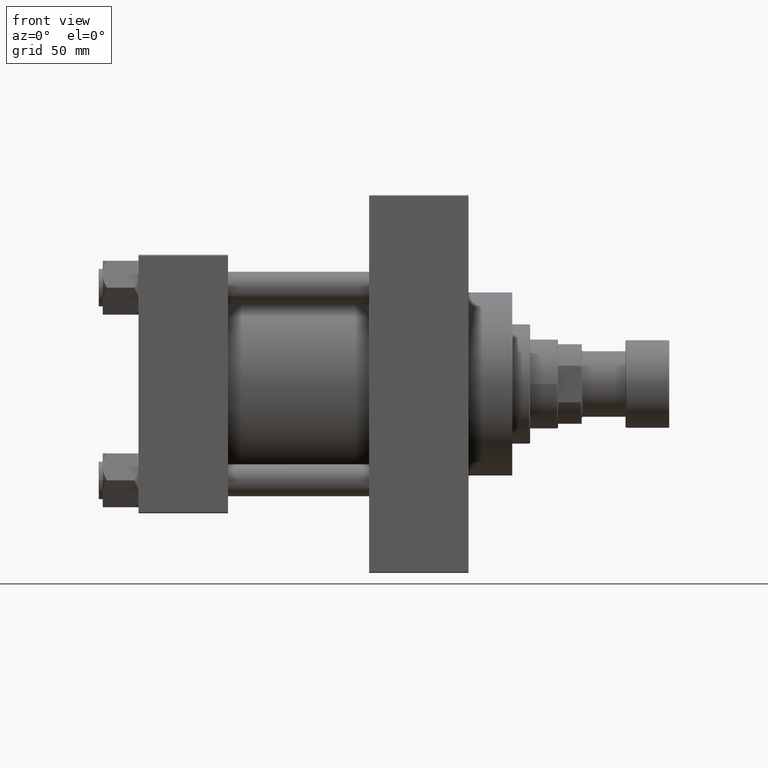
[diagram: clean part render]
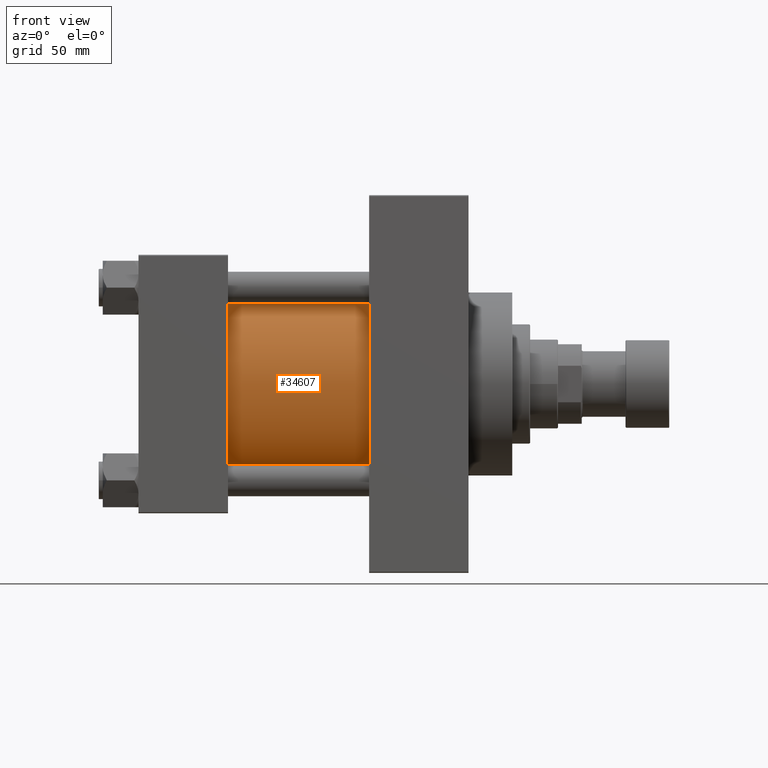
[diagram: same view with one face highlighted and labeled with its STEP entity id]
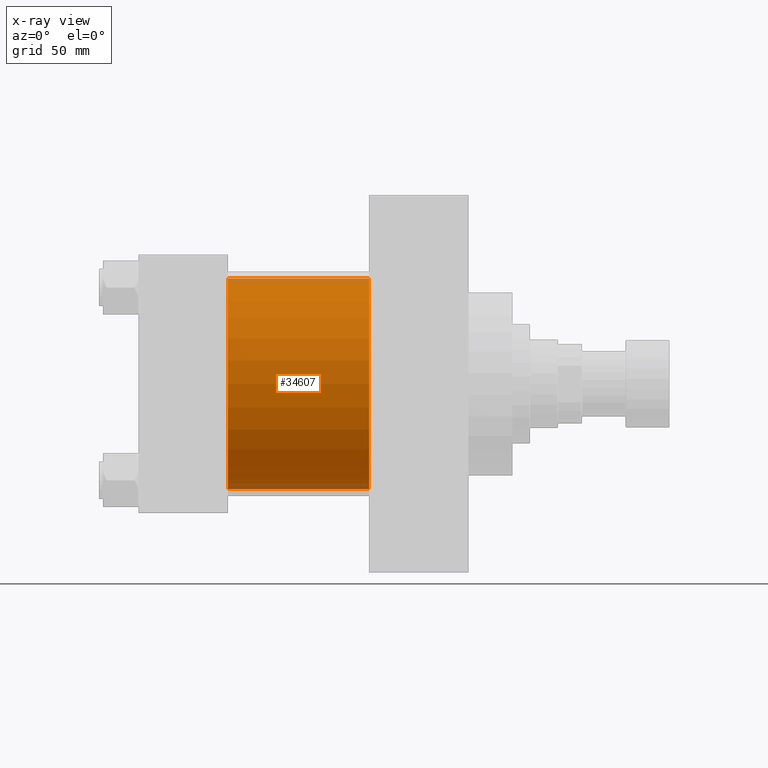
[diagram: x-ray of the same camera — body ghosted, the highlighted face saturated]
A machine part, front view. The second image highlights one B-rep face of the part: STEP entity #34607.
The next image is the same camera in x-ray: the body ghosted, the highlighted face saturated — about 5% of this face is hidden behind the body in this view.
In plain terms, the highlighted cylindrical surface (partial cylindrical patch) has radius 53 mm, axis along (-1, -0, -0).
Its self-contained STEP definition (entity closure, byte-faithful):
#646 = DIRECTION ( 'NONE',  ( 0.000000000000000000, 0.000000000000000000, 1.000000000000000000 ) ) ;
#880 = DIRECTION ( 'NONE',  ( 1.000000000000000000, -0.000000000000000000, 0.000000000000000000 ) ) ;
#972 = ORIENTED_EDGE ( 'NONE', *, *, #25551, .T. ) ;
#1797 = AXIS2_PLACEMENT_3D ( 'NONE', #34204, #880, #646 ) ;
#3324 = CYLINDRICAL_SURFACE ( 'NONE', #13674, 53.00000000000000711 ) ;
#3547 = AXIS2_PLACEMENT_3D ( 'NONE', #18473, #11649, #29896 ) ;
#3761 = ORIENTED_EDGE ( 'NONE', *, *, #34341, .F. ) ;
#4190 = EDGE_CURVE ( 'NONE', #30008, #10428, #4941, .T. ) ;
#4941 = LINE ( 'NONE', #16157, #22422 ) ;
#5246 = VERTEX_POINT ( 'NONE', #31275 ) ;
#5876 = CIRCLE ( 'NONE', #3547, 53.00000000000000711 ) ;
#6017 = CARTESIAN_POINT ( 'NONE',  ( 115.9999999999999858, -2.602085213965210642E-15, 53.00000000000000711 ) ) ;
#6814 = CARTESIAN_POINT ( 'NONE',  ( 45.00000000000000000, 3.888542821515762466E-15, -53.00000000000000711 ) ) ;
#9154 = ORIENTED_EDGE ( 'NONE', *, *, #26102, .T. ) ;
#9388 = EDGE_LOOP ( 'NONE', ( #48141, #3761, #9154, #972 ) ) ;
#10428 = VERTEX_POINT ( 'NONE', #6814 ) ;
#11649 = DIRECTION ( 'NONE',  ( 1.000000000000000000, 0.000000000000000000, 0.000000000000000000 ) ) ;
#13674 = AXIS2_PLACEMENT_3D ( 'NONE', #21582, #17456, #42983 ) ;
#16157 = CARTESIAN_POINT ( 'NONE',  ( 115.9999999999999858, 3.888542821515762466E-15, -53.00000000000000711 ) ) ;
#16509 = DIRECTION ( 'NONE',  ( -1.000000000000000000, -0.000000000000000000, -0.000000000000000000 ) ) ;
#17456 = DIRECTION ( 'NONE',  ( -1.000000000000000000, -0.000000000000000000, -0.000000000000000000 ) ) ;
#17823 = CARTESIAN_POINT ( 'NONE',  ( 115.9999999999999858, -2.602085213965210642E-15, 53.00000000000000711 ) ) ;
#18473 = CARTESIAN_POINT ( 'NONE',  ( 115.9999999999999858, -2.602085213965210642E-15, 0.000000000000000000 ) ) ;
#21582 = CARTESIAN_POINT ( 'NONE',  ( 115.9999999999999858, -2.602085213965210642E-15, 0.000000000000000000 ) ) ;
#22422 = VECTOR ( 'NONE', #45804, 1000.000000000000000 ) ;
#22785 = CIRCLE ( 'NONE', #1797, 53.00000000000000711 ) ;
#25169 = VECTOR ( 'NONE', #16509, 1000.000000000000000 ) ;
#25551 = EDGE_CURVE ( 'NONE', #5246, #10428, #22785, .T. ) ;
#26102 = EDGE_CURVE ( 'NONE', #42284, #5246, #42739, .T. ) ;
#28221 = CARTESIAN_POINT ( 'NONE',  ( 115.9999999999999858, 3.888542821515762466E-15, -53.00000000000000711 ) ) ;
#29896 = DIRECTION ( 'NONE',  ( 0.000000000000000000, 0.000000000000000000, -1.000000000000000000 ) ) ;
#30008 = VERTEX_POINT ( 'NONE', #28221 ) ;
#31275 = CARTESIAN_POINT ( 'NONE',  ( 45.00000000000000000, -2.602085213965210642E-15, 53.00000000000000711 ) ) ;
#34204 = CARTESIAN_POINT ( 'NONE',  ( 45.00000000000000000, -2.602085213965210642E-15, 0.000000000000000000 ) ) ;
#34341 = EDGE_CURVE ( 'NONE', #42284, #30008, #5876, .T. ) ;
#34607 = ADVANCED_FACE ( 'NONE', ( #46887 ), #3324, .T. ) ;
#42284 = VERTEX_POINT ( 'NONE', #17823 ) ;
#42739 = LINE ( 'NONE', #6017, #25169 ) ;
#42983 = DIRECTION ( 'NONE',  ( 0.000000000000000000, 0.000000000000000000, 1.000000000000000000 ) ) ;
#45804 = DIRECTION ( 'NONE',  ( -1.000000000000000000, -0.000000000000000000, -0.000000000000000000 ) ) ;
#46887 = FACE_OUTER_BOUND ( 'NONE', #9388, .T. ) ;
#48141 = ORIENTED_EDGE ( 'NONE', *, *, #4190, .F. ) ;